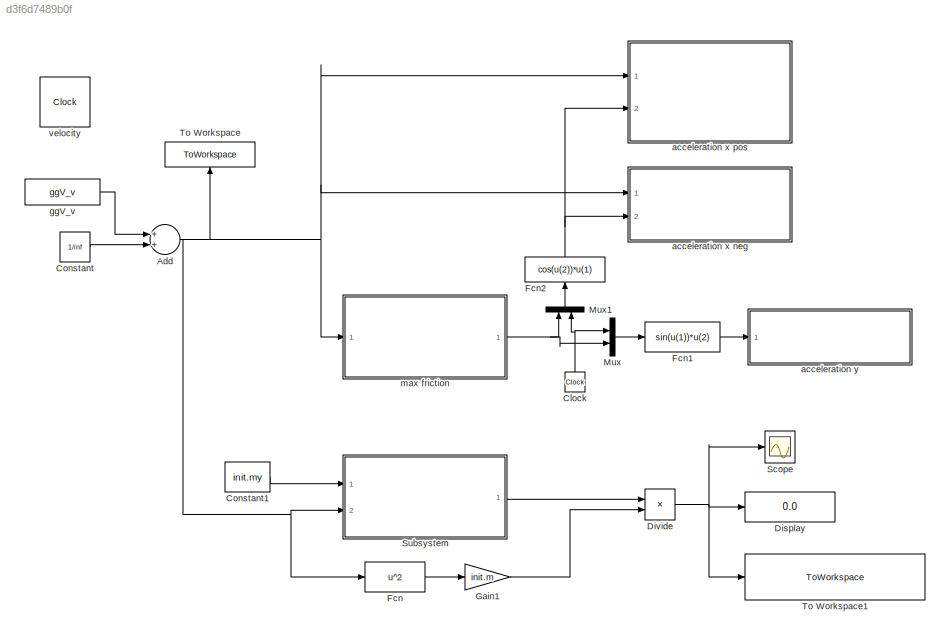
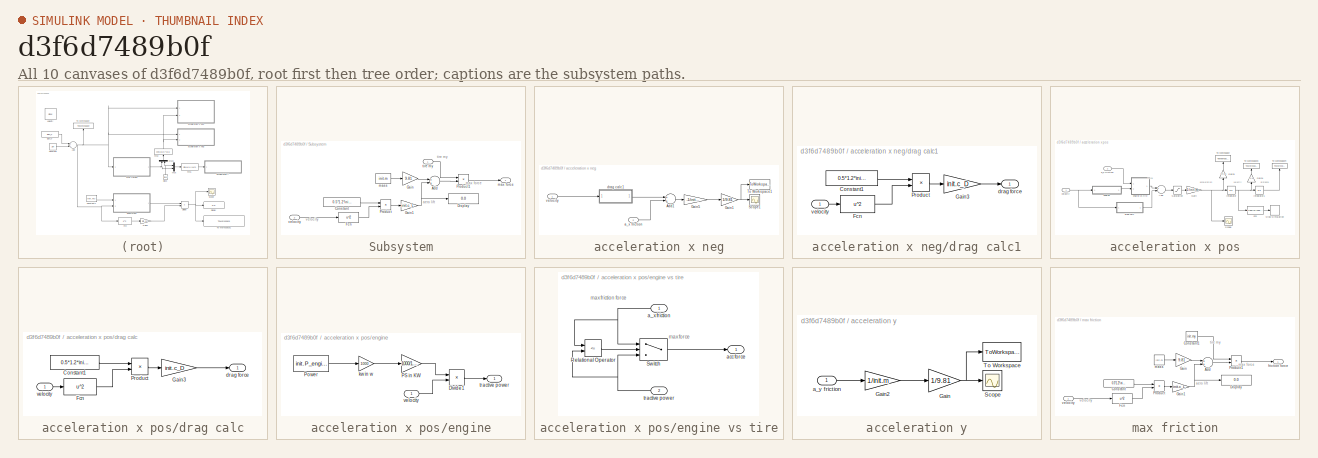
[diagram: thumbnail index - all 10 canvases of the model, root first then tree order]
MODEL slx_d3f6d7489b0f
KIND model
CONFIG AbsTol = auto
CONFIG EnableMultiTasking = off
CONFIG FixedStep = ggV.simu_stepSize
CONFIG MaxStep = auto
CONFIG MinStep = auto
CONFIG RelTol = 1e-3
CONFIG SampleTimeConstraint = Unconstrained
CONFIG Solver = FixedStepAuto
CONFIG SolverName = FixedStepAuto
CONFIG StartTime = 0.0
CONFIG StopTime = ggV.simu_stopTime
BLOCK [Sum] Add
  InputSameDT = off
  OutDataTypeStr = Inherit: Inherit via internal rule
  Ports = [2, 1]
  SaturateOnIntegerOverflow = off
BLOCK [Clock] Clock
BLOCK [Constant] Constant
  Value = 1/inf
BLOCK [Constant] Constant1
  Value = init.my
BLOCK [Display] Display
  Decimation = 1
  Ports = [1]
BLOCK [Product] Divide
  InputSameDT = off
  Inputs = /*
  OutDataTypeStr = Inherit: Inherit via internal rule
  Ports = [2, 1]
  RndMeth = Floor
  SaturateOnIntegerOverflow = off
BLOCK [Fcn] Fcn
  Expr = u^2
BLOCK [Fcn] Fcn1
  Expr = sin(u(1))*u(2)
BLOCK [Fcn] Fcn2
  Expr = cos(u(2))*u(1)
BLOCK [Gain] Gain1
  Gain = init.m
  OutDataTypeStr = Inherit: Inherit via internal rule
  ParamDataTypeStr = Inherit: Inherit via internal rule
  SaturateOnIntegerOverflow = off
BLOCK [Mux] Mux
  DisplayOption = bar
  Inputs = 2
  Ports = [2, 1]
BLOCK [Mux] Mux1
  DisplayOption = bar
  Inputs = 2
  Ports = [2, 1]
BLOCK [Scope] Scope
  Floating = off
  NumInputPorts = 1
  Ports = [1]
  ScopeSpecificationString = Simulink.scopes.TimeScopeBlockCfg('CurrentConfiguration', extmgr.ConfigurationSet(extmgr.Configuration('Core','General UI',true),extmgr.Configuration('Core','Source UI',true),extmgr.Configuration('Sources','WiredSimulink',true,'DataLoggingVariableName','ScopeData1'),extmgr.Configuration('Visuals','Time Domain',true,'SerializedDisplays',{struct('MinYLimReal','28.78244','MaxYLimReal','48.78244','YLa...<+1402ch>
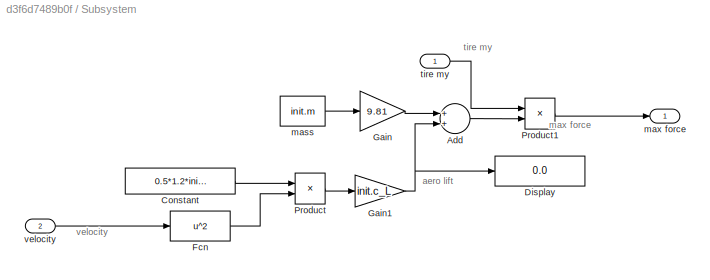
BLOCK [SubSystem] Subsystem
  Ports = [2, 1]
  RequestExecContextInheritance = off
BLOCK [Sum] Subsystem/Add
  InputSameDT = off
  OutDataTypeStr = Inherit: Inherit via internal rule
  Ports = [2, 1]
  SaturateOnIntegerOverflow = off
BLOCK [Constant] Subsystem/Constant
  Value = 0.5*1.2*init.ae_A
BLOCK [Display] Subsystem/Display
  Decimation = 1
  Ports = [1]
BLOCK [Fcn] Subsystem/Fcn
  Expr = u^2
BLOCK [Gain] Subsystem/Gain
  Gain = 9.81
  OutDataTypeStr = Inherit: Inherit via internal rule
  ParamDataTypeStr = Inherit: Inherit via internal rule
  SaturateOnIntegerOverflow = off
BLOCK [Gain] Subsystem/Gain1
  Gain = init.c_L
  OutDataTypeStr = Inherit: Inherit via internal rule
  ParamDataTypeStr = Inherit: Inherit via internal rule
  SaturateOnIntegerOverflow = off
BLOCK [Product] Subsystem/Product
  InputSameDT = off
  OutDataTypeStr = Inherit: Inherit via internal rule
  Ports = [2, 1]
  RndMeth = Floor
  SaturateOnIntegerOverflow = off
BLOCK [Product] Subsystem/Product1
  InputSameDT = off
  OutDataTypeStr = Inherit: Inherit via internal rule
  Ports = [2, 1]
  RndMeth = Floor
  SaturateOnIntegerOverflow = off
BLOCK [Constant] Subsystem/mass 
  Value = init.m
BLOCK [Outport] Subsystem/max force
  IconDisplay = Port number
BLOCK [Inport] Subsystem/tire my
  IconDisplay = Port number
BLOCK [Inport] Subsystem/velocity
  IconDisplay = Port number
  Port = 2
BLOCK [ToWorkspace] To Workspace
  FixptAsFi = on
  MaxDataPoints = inf
  Ports = [1]
  SampleTime = -1
  VariableName = velocity
BLOCK [ToWorkspace] To Workspace1
  FixptAsFi = on
  MaxDataPoints = inf
  Ports = [1]
  SampleTime = -1
  VariableName = maxRadiusForVelocity
BLOCK [SubSystem] acceleration x neg
  Ports = [2]
  RequestExecContextInheritance = off
BLOCK [Sum] acceleration x neg/Add1
  InputSameDT = off
  OutDataTypeStr = Inherit: Inherit via internal rule
  Ports = [2, 1]
  SaturateOnIntegerOverflow = off
BLOCK [Gain] acceleration x neg/Gain1
  Commented = through
  Gain = 1/9.81
  OutDataTypeStr = Inherit: Inherit via internal rule
  ParamDataTypeStr = Inherit: Inherit via internal rule
  SaturateOnIntegerOverflow = off
BLOCK [Gain] acceleration x neg/Gain5
  Gain = -1/init.m
  OutDataTypeStr = Inherit: Inherit via internal rule
  ParamDataTypeStr = Inherit: Inherit via internal rule
  SaturateOnIntegerOverflow = off
BLOCK [Scope] acceleration x neg/Scope1
  Floating = off
  NumInputPorts = 1
  Ports = [1]
  ScopeSpecificationString = Simulink.scopes.TimeScopeBlockCfg('CurrentConfiguration', extmgr.ConfigurationSet(extmgr.Configuration('Core','General UI',true),extmgr.Configuration('Core','Source UI',true),extmgr.Configuration('Sources','WiredSimulink',true,'DataLoggingVariableName','ScopeData1'),extmgr.Configuration('Visuals','Time Domain',true,'SerializedDisplays',{struct('MinYLimReal','1.29271','MaxYLimReal','3.95404','YLabe...<+1362ch>
BLOCK [ToWorkspace] acceleration x neg/To Workspace1
  FixptAsFi = on
  MaxDataPoints = inf
  Ports = [1]
  SampleTime = -1
  VariableName = a_x_neg
BLOCK [Inport] acceleration x neg/a_x friction
  IconDisplay = Port number
  Port = 2
BLOCK [SubSystem] acceleration x neg/drag calc1
  Ports = [1, 1]
  RequestExecContextInheritance = off
BLOCK [Constant] acceleration x neg/drag calc1/Constant1
  Value = 0.5*1.2*init.ae_A
BLOCK [Fcn] acceleration x neg/drag calc1/Fcn
  Expr = u^2
BLOCK [Gain] acceleration x neg/drag calc1/Gain3
  Gain = init.c_D
  OutDataTypeStr = Inherit: Inherit via internal rule
  ParamDataTypeStr = Inherit: Inherit via internal rule
  SaturateOnIntegerOverflow = off
BLOCK [Product] acceleration x neg/drag calc1/Product
  InputSameDT = off
  OutDataTypeStr = Inherit: Inherit via internal rule
  Ports = [2, 1]
  RndMeth = Floor
  SaturateOnIntegerOverflow = off
BLOCK [Outport] acceleration x neg/drag calc1/drag force 
  IconDisplay = Port number
BLOCK [Inport] acceleration x neg/drag calc1/velocity
  IconDisplay = Port number
BLOCK [Inport] acceleration x neg/velocity
  IconDisplay = Port number
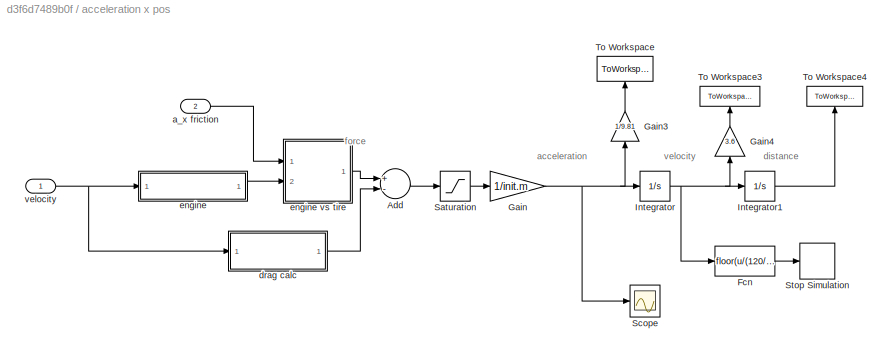
BLOCK [SubSystem] acceleration x pos
  Ports = [2]
  RequestExecContextInheritance = off
BLOCK [Sum] acceleration x pos/Add
  InputSameDT = off
  Inputs = +-
  OutDataTypeStr = Inherit: Inherit via internal rule
  Ports = [2, 1]
  SaturateOnIntegerOverflow = off
BLOCK [Fcn] acceleration x pos/Fcn
  Commented = on
  Expr = floor(u/(120/3.6))
BLOCK [Gain] acceleration x pos/Gain
  Gain = 1/init.m
  OutDataTypeStr = Inherit: Inherit via internal rule
  ParamDataTypeStr = Inherit: Inherit via internal rule
  SaturateOnIntegerOverflow = off
BLOCK [Gain] acceleration x pos/Gain3
  Commented = through
  Gain = 1/9.81
  OutDataTypeStr = Inherit: Inherit via internal rule
  ParamDataTypeStr = Inherit: Inherit via internal rule
  SaturateOnIntegerOverflow = off
BLOCK [Gain] acceleration x pos/Gain4
  Gain = 3.6
  OutDataTypeStr = Inherit: Inherit via internal rule
  ParamDataTypeStr = Inherit: Inherit via internal rule
  SaturateOnIntegerOverflow = off
BLOCK [Integrator] acceleration x pos/Integrator
  Ports = [1, 1]
BLOCK [Integrator] acceleration x pos/Integrator1
  Ports = [1, 1]
BLOCK [Saturate] acceleration x pos/Saturation
  InputPortMap = u0
  LowerLimit = 0
  Ports = [1, 1]
  UpperLimit = inf
BLOCK [Scope] acceleration x pos/Scope
  Floating = off
  NumInputPorts = 1
  Ports = [1]
  ScopeSpecificationString = Simulink.scopes.TimeScopeBlockCfg('CurrentConfiguration', extmgr.ConfigurationSet(extmgr.Configuration('Core','General UI',true),extmgr.Configuration('Core','Source UI',true),extmgr.Configuration('Sources','WiredSimulink',true,'DataLoggingVariableName','ScopeData2'),extmgr.Configuration('Visuals','Time Domain',true,'SerializedDisplays',{struct('MinYLimReal','3.62183','MaxYLimReal','23.62183','YLab...<+1365ch>
BLOCK [Stop] acceleration x pos/Stop Simulation
  Commented = on
BLOCK [ToWorkspace] acceleration x pos/To Workspace
  FixptAsFi = on
  MaxDataPoints = inf
  Ports = [1]
  SampleTime = -1
  VariableName = a_x_pos
BLOCK [ToWorkspace] acceleration x pos/To Workspace3
  FixptAsFi = on
  MaxDataPoints = inf
  Ports = [1]
  SampleTime = -1
  VariableName = velocity_vgl
BLOCK [ToWorkspace] acceleration x pos/To Workspace4
  FixptAsFi = on
  MaxDataPoints = inf
  Ports = [1]
  SampleTime = -1
  VariableName = distance
BLOCK [Inport] acceleration x pos/a_x friction
  IconDisplay = Port number
  Port = 2
BLOCK [SubSystem] acceleration x pos/drag calc
  Ports = [1, 1]
  RequestExecContextInheritance = off
BLOCK [Constant] acceleration x pos/drag calc/Constant1
  Value = 0.5*1.2*init.ae_A
BLOCK [Fcn] acceleration x pos/drag calc/Fcn
  Expr = u^2
BLOCK [Gain] acceleration x pos/drag calc/Gain3
  Gain = init.c_D
  OutDataTypeStr = Inherit: Inherit via internal rule
  ParamDataTypeStr = Inherit: Inherit via internal rule
  SaturateOnIntegerOverflow = off
BLOCK [Product] acceleration x pos/drag calc/Product
  InputSameDT = off
  OutDataTypeStr = Inherit: Inherit via internal rule
  Ports = [2, 1]
  RndMeth = Floor
  SaturateOnIntegerOverflow = off
BLOCK [Outport] acceleration x pos/drag calc/drag force 
  IconDisplay = Port number
BLOCK [Inport] acceleration x pos/drag calc/velocity
  IconDisplay = Port number
BLOCK [SubSystem] acceleration x pos/engine
  Ports = [1, 1]
  RequestExecContextInheritance = off
BLOCK [SubSystem] acceleration x pos/engine vs tire
  Ports = [2, 1]
  RequestExecContextInheritance = off
BLOCK [RelationalOperator] acceleration x pos/engine vs tire/Relational Operator
  InputSameDT = off
  Operator = <=
  OutDataTypeStr = boolean
  Ports = [2, 1]
  RndMeth = Simplest
BLOCK [Switch] acceleration x pos/engine vs tire/Switch
  Criteria = u2 > Threshold
  InputSameDT = off
  SaturateOnIntegerOverflow = off
BLOCK [Inport] acceleration x pos/engine vs tire/a_x friction 
  IconDisplay = Port number
BLOCK [Outport] acceleration x pos/engine vs tire/acc force
  IconDisplay = Port number
BLOCK [Inport] acceleration x pos/engine vs tire/tractive power
  IconDisplay = Port number
  Port = 2
BLOCK [Product] acceleration x pos/engine/Divide1
  InputSameDT = off
  Inputs = */
  OutDataTypeStr = Inherit: Inherit via internal rule
  Ports = [2, 1]
  RndMeth = Floor
  SaturateOnIntegerOverflow = off
BLOCK [Gain] acceleration x pos/engine/PS in KW 
  Commented = through
  Gain = 1000/1.35962
  OutDataTypeStr = Inherit: Inherit via internal rule
  ParamDataTypeStr = Inherit: Inherit via internal rule
  SaturateOnIntegerOverflow = off
BLOCK [Constant] acceleration x pos/engine/Power 
  Value = init.P_engine
BLOCK [Gain] acceleration x pos/engine/kw in w 
  Gain = 1000
  OutDataTypeStr = Inherit: Inherit via internal rule
  ParamDataTypeStr = Inherit: Inherit via internal rule
  SaturateOnIntegerOverflow = off
BLOCK [Outport] acceleration x pos/engine/tractive power
  IconDisplay = Port number
BLOCK [Inport] acceleration x pos/engine/velocity
  IconDisplay = Port number
BLOCK [Inport] acceleration x pos/velocity
  IconDisplay = Port number
BLOCK [SubSystem] acceleration y
  Ports = [1]
  RequestExecContextInheritance = off
BLOCK [Gain] acceleration y/Gain
  Commented = through
  Gain = 1/9.81
  OutDataTypeStr = Inherit: Inherit via internal rule
  ParamDataTypeStr = Inherit: Inherit via internal rule
  SaturateOnIntegerOverflow = off
BLOCK [Gain] acceleration y/Gain2
  Gain = 1/init.m
  OutDataTypeStr = Inherit: Inherit via internal rule
  ParamDataTypeStr = Inherit: Inherit via internal rule
  SaturateOnIntegerOverflow = off
BLOCK [Scope] acceleration y/Scope
  Floating = off
  NumInputPorts = 1
  Ports = [1]
  ScopeSpecificationString = Simulink.scopes.TimeScopeBlockCfg('CurrentConfiguration', extmgr.ConfigurationSet(extmgr.Configuration('Core','General UI',true),extmgr.Configuration('Core','Source UI',true),extmgr.Configuration('Sources','WiredSimulink',true),extmgr.Configuration('Visuals','Time Domain',true,'SerializedDisplays',{struct('MinYLimReal','1.52525','MaxYLimReal','4.27275','YLabelReal','','MinYLimMag','1.52525','MaxYL...<+1322ch>
BLOCK [ToWorkspace] acceleration y/To Workspace
  FixptAsFi = on
  MaxDataPoints = inf
  Ports = [1]
  SampleTime = -1
  VariableName = a_y
BLOCK [Inport] acceleration y/a_y friction
  IconDisplay = Port number
BLOCK [Constant] ggV_v 
  Value = ggV_v
BLOCK [SubSystem] max friction
  Ports = [1, 1]
  RequestExecContextInheritance = off
BLOCK [Sum] max friction/Add
  InputSameDT = off
  OutDataTypeStr = Inherit: Inherit via internal rule
  Ports = [2, 1]
  SaturateOnIntegerOverflow = off
BLOCK [Constant] max friction/Constant
  Value = 0.5*1.2*init.ae_A
BLOCK [Constant] max friction/Constant1
  Value = init.my
BLOCK [Display] max friction/Display
  Decimation = 1
  Ports = [1]
BLOCK [Fcn] max friction/Fcn
  Expr = u^2
BLOCK [Gain] max friction/Gain
  Gain = 9.81
  OutDataTypeStr = Inherit: Inherit via internal rule
  ParamDataTypeStr = Inherit: Inherit via internal rule
  SaturateOnIntegerOverflow = off
BLOCK [Gain] max friction/Gain1
  Gain = init.c_L
  OutDataTypeStr = Inherit: Inherit via internal rule
  ParamDataTypeStr = Inherit: Inherit via internal rule
  SaturateOnIntegerOverflow = off
BLOCK [Product] max friction/Product
  InputSameDT = off
  OutDataTypeStr = Inherit: Inherit via internal rule
  Ports = [2, 1]
  RndMeth = Floor
  SaturateOnIntegerOverflow = off
BLOCK [Product] max friction/Product1
  InputSameDT = off
  OutDataTypeStr = Inherit: Inherit via internal rule
  Ports = [2, 1]
  RndMeth = Floor
  SaturateOnIntegerOverflow = off
BLOCK [Outport] max friction/friction force
  IconDisplay = Port number
BLOCK [Constant] max friction/mass 
  Value = init.m
BLOCK [Inport] max friction/velocity
  IconDisplay = Port number
BLOCK [Clock] velocity
  Commented = on
ANNOTATION Subsystem: aero lift
ANNOTATION Subsystem: max force
ANNOTATION Subsystem: tire my
ANNOTATION Subsystem: velocity
ANNOTATION acceleration x pos: acceleration
ANNOTATION acceleration x pos: distance
ANNOTATION acceleration x pos: force
ANNOTATION acceleration x pos: velocity
ANNOTATION acceleration x pos/engine vs tire: max force
ANNOTATION acceleration x pos/engine vs tire: max friction force
ANNOTATION max friction: aero lift
ANNOTATION max friction: max force
ANNOTATION max friction: tire my
ANNOTATION max friction: velocity
NET Add:1 -> Fcn:1, Subsystem:2, To Workspace:1, acceleration x neg:1, acceleration x pos:1, max friction:1
NET Clock:1 -> Mux1:2, Mux:1
LINE Constant1:1 -> Subsystem:1
LINE Constant:1 -> Add:2
NET Divide:1 -> Display:1, Scope:1, To Workspace1:1
LINE Fcn1:1 -> acceleration y:1
NET Fcn2:1 -> acceleration x neg:2, acceleration x pos:2
LINE Fcn:1 -> Gain1:1
LINE Gain1:1 -> Divide:2
LINE Mux1:1 -> Fcn2:1
LINE Mux:1 -> Fcn1:1
LINE Subsystem/Add:1 -> Subsystem/Product1:2
LINE Subsystem/Constant:1 -> Subsystem/Product:1
LINE Subsystem/Fcn:1 -> Subsystem/Product:2
NET Subsystem/Gain1:1 -> Subsystem/Add:2, Subsystem/Display:1
LINE Subsystem/Gain:1 -> Subsystem/Add:1
LINE Subsystem/Product1:1 -> Subsystem/max force:1
LINE Subsystem/Product:1 -> Subsystem/Gain1:1
LINE Subsystem/mass :1 -> Subsystem/Gain:1
LINE Subsystem/tire my:1 -> Subsystem/Product1:1
LINE Subsystem/velocity:1 -> Subsystem/Fcn:1
LINE Subsystem:1 -> Divide:1
LINE acceleration x neg/Add1:1 -> acceleration x neg/Gain5:1
NET acceleration x neg/Gain1:1 -> acceleration x neg/Scope1:1, acceleration x neg/To Workspace1:1
LINE acceleration x neg/Gain5:1 -> acceleration x neg/Gain1:1
LINE acceleration x neg/a_x friction:1 -> acceleration x neg/Add1:2
LINE acceleration x neg/drag calc1/Constant1:1 -> acceleration x neg/drag calc1/Product:1
LINE acceleration x neg/drag calc1/Fcn:1 -> acceleration x neg/drag calc1/Product:2
LINE acceleration x neg/drag calc1/Gain3:1 -> acceleration x neg/drag calc1/drag force :1
LINE acceleration x neg/drag calc1/Product:1 -> acceleration x neg/drag calc1/Gain3:1
LINE acceleration x neg/drag calc1/velocity:1 -> acceleration x neg/drag calc1/Fcn:1
LINE acceleration x neg/drag calc1:1 -> acceleration x neg/Add1:1
LINE acceleration x neg/velocity:1 -> acceleration x neg/drag calc1:1
LINE acceleration x pos/Add:1 -> acceleration x pos/Saturation:1
LINE acceleration x pos/Fcn:1 -> acceleration x pos/Stop Simulation:1
LINE acceleration x pos/Gain3:1 -> acceleration x pos/To Workspace:1
LINE acceleration x pos/Gain4:1 -> acceleration x pos/To Workspace3:1
NET acceleration x pos/Gain:1 -> acceleration x pos/Gain3:1, acceleration x pos/Integrator:1, acceleration x pos/Scope:1
LINE acceleration x pos/Integrator1:1 -> acceleration x pos/To Workspace4:1
NET acceleration x pos/Integrator:1 -> acceleration x pos/Fcn:1, acceleration x pos/Gain4:1, acceleration x pos/Integrator1:1
LINE acceleration x pos/Saturation:1 -> acceleration x pos/Gain:1
LINE acceleration x pos/a_x friction:1 -> acceleration x pos/engine vs tire:1
LINE acceleration x pos/drag calc/Constant1:1 -> acceleration x pos/drag calc/Product:1
LINE acceleration x pos/drag calc/Fcn:1 -> acceleration x pos/drag calc/Product:2
LINE acceleration x pos/drag calc/Gain3:1 -> acceleration x pos/drag calc/drag force :1
LINE acceleration x pos/drag calc/Product:1 -> acceleration x pos/drag calc/Gain3:1
LINE acceleration x pos/drag calc/velocity:1 -> acceleration x pos/drag calc/Fcn:1
LINE acceleration x pos/drag calc:1 -> acceleration x pos/Add:2
LINE acceleration x pos/engine vs tire/Relational Operator:1 -> acceleration x pos/engine vs tire/Switch:2
LINE acceleration x pos/engine vs tire/Switch:1 -> acceleration x pos/engine vs tire/acc force:1
NET acceleration x pos/engine vs tire/a_x friction :1 -> acceleration x pos/engine vs tire/Relational Operator:1, acceleration x pos/engine vs tire/Switch:1
NET acceleration x pos/engine vs tire/tractive power:1 -> acceleration x pos/engine vs tire/Relational Operator:2, acceleration x pos/engine vs tire/Switch:3
LINE acceleration x pos/engine vs tire:1 -> acceleration x pos/Add:1
LINE acceleration x pos/engine/Divide1:1 -> acceleration x pos/engine/tractive power:1
LINE acceleration x pos/engine/PS in KW :1 -> acceleration x pos/engine/Divide1:1
LINE acceleration x pos/engine/Power :1 -> acceleration x pos/engine/kw in w :1
LINE acceleration x pos/engine/kw in w :1 -> acceleration x pos/engine/PS in KW :1
LINE acceleration x pos/engine/velocity:1 -> acceleration x pos/engine/Divide1:2
LINE acceleration x pos/engine:1 -> acceleration x pos/engine vs tire:2
NET acceleration x pos/velocity:1 -> acceleration x pos/drag calc:1, acceleration x pos/engine:1
LINE acceleration y/Gain2:1 -> acceleration y/Gain:1
NET acceleration y/Gain:1 -> acceleration y/Scope:1, acceleration y/To Workspace:1
LINE acceleration y/a_y friction:1 -> acceleration y/Gain2:1
LINE ggV_v :1 -> Add:1
LINE max friction/Add:1 -> max friction/Product1:2
LINE max friction/Constant1:1 -> max friction/Product1:1
LINE max friction/Constant:1 -> max friction/Product:1
LINE max friction/Fcn:1 -> max friction/Product:2
NET max friction/Gain1:1 -> max friction/Add:2, max friction/Display:1
LINE max friction/Gain:1 -> max friction/Add:1
LINE max friction/Product1:1 -> max friction/friction force:1
LINE max friction/Product:1 -> max friction/Gain1:1
LINE max friction/mass :1 -> max friction/Gain:1
LINE max friction/velocity:1 -> max friction/Fcn:1
NET max friction:1 -> Mux1:1, Mux:2
note: NET lines group one-source signal fan-out (src -> all destinations, sorted); 1:1 wires keep LINE
